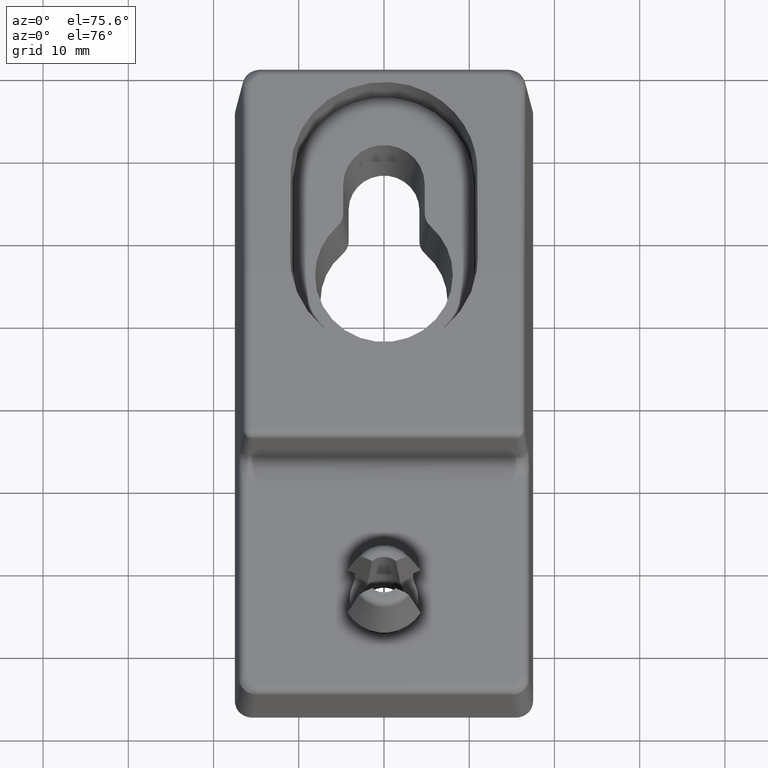
[diagram: clean part render]
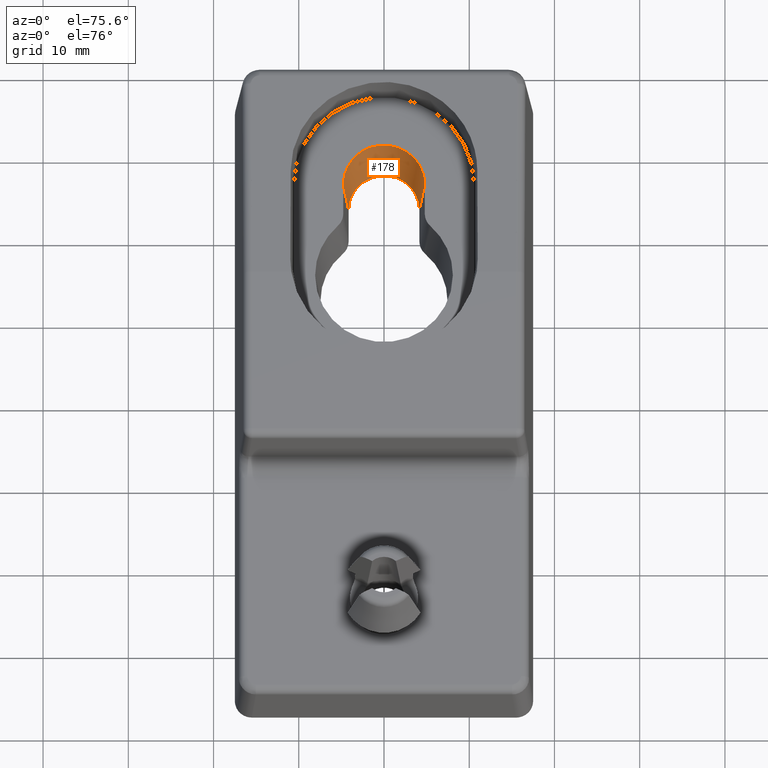
[diagram: same view with one face highlighted and labeled with its STEP entity id]
A machine part, auxiliary view. The second image highlights one B-rep face of the part: STEP entity #178.
In plain terms, the highlighted conical surface has half-angle 3 deg.
Its self-contained STEP definition (entity closure, byte-faithful):
#13 = EDGE_CURVE ( 'NONE', #3057, #354, #2137, .T. ) ;
#165 = ORIENTED_EDGE ( 'NONE', *, *, #1510, .F. ) ;
#178 = ADVANCED_FACE ( 'NONE', ( #2379 ), #1349, .F. ) ;
#203 = AXIS2_PLACEMENT_3D ( 'NONE', #2836, #1658, #1672 ) ;
#243 = CARTESIAN_POINT ( 'NONE',  ( -5.200000000000000200, 24.00000000000000000, 10.00000000000000000 ) ) ;
#336 = CARTESIAN_POINT ( 'NONE',  ( 4.780737765735669800, 24.00000000000000000, 2.000000000000000000 ) ) ;
#337 = DIRECTION ( 'NONE',  ( 1.000000000000000000, 0.0000000000000000000, 0.0000000000000000000 ) ) ;
#354 = VERTEX_POINT ( 'NONE', #336 ) ;
#454 = EDGE_LOOP ( 'NONE', ( #2664, #165, #2960, #1045 ) ) ;
#623 = DIRECTION ( 'NONE',  ( 0.05233595624294389000, -0.0000000000000000000, 0.9986295347545739400 ) ) ;
#712 = AXIS2_PLACEMENT_3D ( 'NONE', #815, #2462, #337 ) ;
#815 = CARTESIAN_POINT ( 'NONE',  ( 1.224646799147354400E-016, 24.00000000000000000, 2.000000000000000000 ) ) ;
#904 = EDGE_CURVE ( 'NONE', #2686, #1870, #2276, .T. ) ;
#1045 = ORIENTED_EDGE ( 'NONE', *, *, #2827, .T. ) ;
#1088 = VECTOR ( 'NONE', #1191, 1000.000000000000000 ) ;
#1120 = LINE ( 'NONE', #3003, #1877 ) ;
#1191 = DIRECTION ( 'NONE',  ( -0.05233595624294387600, -0.0000000000000000000, 0.9986295347545739400 ) ) ;
#1195 = LINE ( 'NONE', #243, #1088 ) ;
#1349 = CONICAL_SURFACE ( 'NONE', #2255, 5.200000000000000200, 0.05235987755982993200 ) ;
#1510 = EDGE_CURVE ( 'NONE', #2686, #3057, #1195, .T. ) ;
#1601 = DIRECTION ( 'NONE',  ( -0.0000000000000000000, -0.0000000000000000000, 1.000000000000000000 ) ) ;
#1658 = DIRECTION ( 'NONE',  ( 0.0000000000000000000, -0.0000000000000000000, -1.000000000000000000 ) ) ;
#1672 = DIRECTION ( 'NONE',  ( 1.000000000000000000, 0.0000000000000000000, 0.0000000000000000000 ) ) ;
#1754 = CARTESIAN_POINT ( 'NONE',  ( -4.151844414339175100, 24.00000000000000000, -10.00000000000000000 ) ) ;
#1866 = CARTESIAN_POINT ( 'NONE',  ( -4.780737765735669800, 24.00000000000000000, 2.000000000000000000 ) ) ;
#1870 = VERTEX_POINT ( 'NONE', #2020 ) ;
#1874 = CARTESIAN_POINT ( 'NONE',  ( 1.224646799147354400E-016, 24.00000000000000000, 10.00000000000000000 ) ) ;
#1877 = VECTOR ( 'NONE', #623, 1000.000000000000000 ) ;
#2020 = CARTESIAN_POINT ( 'NONE',  ( 4.151844414339175100, 24.00000000000000000, -9.999999999999996400 ) ) ;
#2076 = DIRECTION ( 'NONE',  ( 1.000000000000000000, 0.0000000000000000000, 0.0000000000000000000 ) ) ;
#2137 = CIRCLE ( 'NONE', #712, 4.780737765735669800 ) ;
#2255 = AXIS2_PLACEMENT_3D ( 'NONE', #1874, #1601, #2076 ) ;
#2276 = CIRCLE ( 'NONE', #203, 4.151844414339175900 ) ;
#2379 = FACE_OUTER_BOUND ( 'NONE', #454, .T. ) ;
#2462 = DIRECTION ( 'NONE',  ( -0.0000000000000000000, -0.0000000000000000000, -1.000000000000000000 ) ) ;
#2664 = ORIENTED_EDGE ( 'NONE', *, *, #13, .F. ) ;
#2686 = VERTEX_POINT ( 'NONE', #1754 ) ;
#2827 = EDGE_CURVE ( 'NONE', #1870, #354, #1120, .T. ) ;
#2836 = CARTESIAN_POINT ( 'NONE',  ( 1.224646799147354400E-016, 24.00000000000000000, -10.00000000000000000 ) ) ;
#2960 = ORIENTED_EDGE ( 'NONE', *, *, #904, .T. ) ;
#3003 = CARTESIAN_POINT ( 'NONE',  ( 5.200000000000000200, 24.00000000000000000, 10.00000000000000000 ) ) ;
#3057 = VERTEX_POINT ( 'NONE', #1866 ) ;